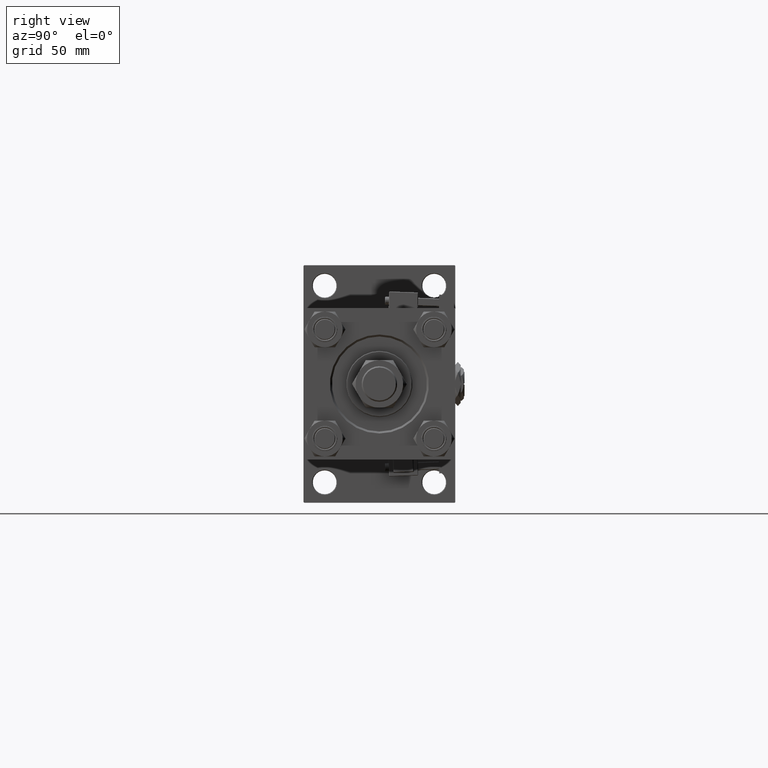
[diagram: clean part render]
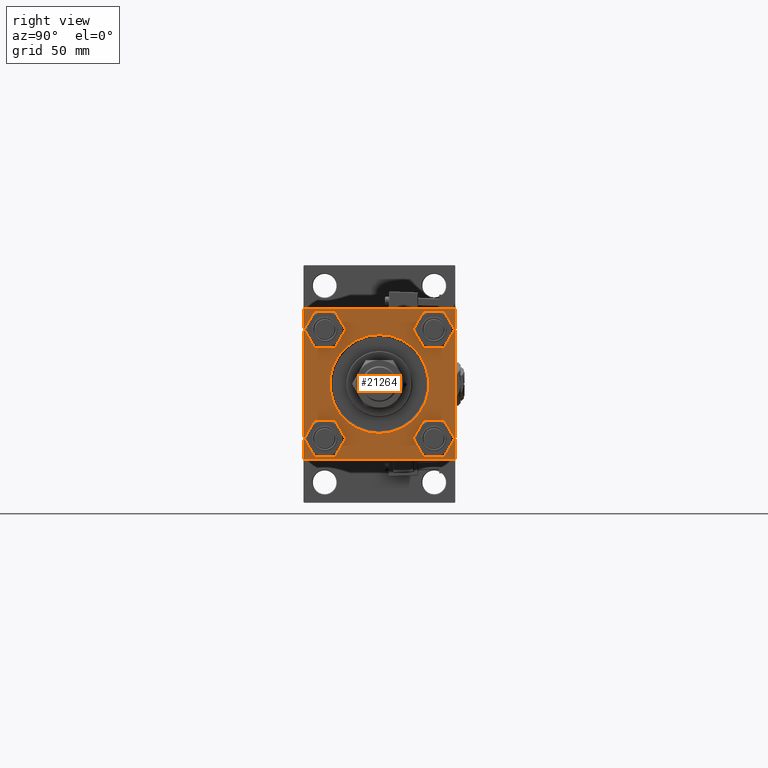
[diagram: same view with one face highlighted and labeled with its STEP entity id]
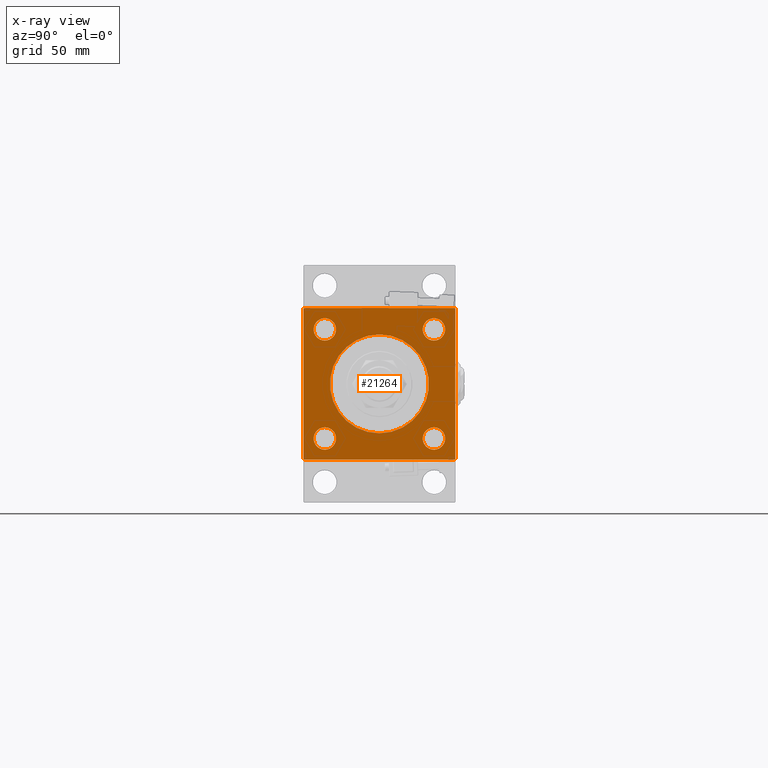
[diagram: x-ray of the same camera — body ghosted, the highlighted face saturated]
A machine part, right view. The second image highlights one B-rep face of the part: STEP entity #21264.
The next image is the same camera in x-ray: the body ghosted, the highlighted face saturated — about 0% of this face is hidden behind the body in this view.
In plain terms, the highlighted planar face has unit normal (-1, 0, 0).
Its self-contained STEP definition (entity closure, byte-faithful):
#340 = EDGE_CURVE ( 'NONE', #42423, #19040, #4211, .T. ) ;
#344 = DIRECTION ( 'NONE',  ( -1.000000000000000000, 0.000000000000000000, -0.000000000000000000 ) ) ;
#426 = ORIENTED_EDGE ( 'NONE', *, *, #10213, .T. ) ;
#1898 = ORIENTED_EDGE ( 'NONE', *, *, #47097, .T. ) ;
#2365 = CIRCLE ( 'NONE', #56030, 8.500000000000063949 ) ;
#2663 = DIRECTION ( 'NONE',  ( -1.000000000000000000, 0.000000000000000000, -0.000000000000000000 ) ) ;
#2701 = VERTEX_POINT ( 'NONE', #47496 ) ;
#2735 = DIRECTION ( 'NONE',  ( -1.000000000000000000, 0.000000000000000000, -0.000000000000000000 ) ) ;
#2802 = EDGE_CURVE ( 'NONE', #43381, #49132, #35924, .T. ) ;
#2828 = VERTEX_POINT ( 'NONE', #23559 ) ;
#2863 = CARTESIAN_POINT ( 'NONE',  ( 409.0000000000000000, -41.34999999999998721, 49.85000000000007248 ) ) ;
#2998 = VERTEX_POINT ( 'NONE', #8136 ) ;
#3162 = EDGE_CURVE ( 'NONE', #27476, #27157, #6124, .T. ) ;
#3756 = LINE ( 'NONE', #42511, #29591 ) ;
#4114 = CARTESIAN_POINT ( 'NONE',  ( 409.0000000000000000, -41.34999999999998721, 41.35000000000000853 ) ) ;
#4179 = ORIENTED_EDGE ( 'NONE', *, *, #15025, .T. ) ;
#4211 = CIRCLE ( 'NONE', #26050, 8.500000000000063949 ) ;
#4424 = ORIENTED_EDGE ( 'NONE', *, *, #28946, .T. ) ;
#4524 = AXIS2_PLACEMENT_3D ( 'NONE', #41782, #2735, #45773 ) ;
#4548 = CARTESIAN_POINT ( 'NONE',  ( 409.0000000000000000, -41.34999999999998721, 41.35000000000000853 ) ) ;
#5572 = CIRCLE ( 'NONE', #51948, 37.50000000000003553 ) ;
#5750 = CARTESIAN_POINT ( 'NONE',  ( 409.0000000000000000, 0.000000000000000000, -37.50000000000003553 ) ) ;
#6111 = CIRCLE ( 'NONE', #50644, 8.500000000000063949 ) ;
#6124 = LINE ( 'NONE', #53392, #41346 ) ;
#6629 = CARTESIAN_POINT ( 'NONE',  ( 409.0000000000000000, -41.34999999999998721, 32.84999999999995168 ) ) ;
#6828 = CARTESIAN_POINT ( 'NONE',  ( 409.0000000000000000, -57.49999999999999289, 57.00000000000004974 ) ) ;
#7161 = CARTESIAN_POINT ( 'NONE',  ( 409.0000000000000000, 57.50000000000000000, -56.99999999999996447 ) ) ;
#7308 = DIRECTION ( 'NONE',  ( 0.000000000000000000, 0.000000000000000000, -1.000000000000000000 ) ) ;
#8100 = VECTOR ( 'NONE', #31971, 1000.000000000000000 ) ;
#8136 = CARTESIAN_POINT ( 'NONE',  ( 409.0000000000000000, 57.00000000000000000, -57.49999999999996447 ) ) ;
#8144 = VECTOR ( 'NONE', #12494, 1000.000000000000000 ) ;
#8559 = LINE ( 'NONE', #17680, #24706 ) ;
#8971 = DIRECTION ( 'NONE',  ( 0.000000000000000000, 0.000000000000000000, 1.000000000000000000 ) ) ;
#9137 = CARTESIAN_POINT ( 'NONE',  ( 409.0000000000000000, 57.50000000000000000, -56.99999999999996447 ) ) ;
#9210 = ORIENTED_EDGE ( 'NONE', *, *, #2802, .T. ) ;
#10213 = EDGE_CURVE ( 'NONE', #42965, #35703, #2365, .T. ) ;
#10401 = DIRECTION ( 'NONE',  ( 0.000000000000000000, 0.7071067811865916486, -0.7071067811865033859 ) ) ;
#10652 = CARTESIAN_POINT ( 'NONE',  ( 409.0000000000000000, 0.000000000000000000, 0.000000000000000000 ) ) ;
#10755 = FACE_BOUND ( 'NONE', #20438, .T. ) ;
#10778 = ORIENTED_EDGE ( 'NONE', *, *, #15936, .T. ) ;
#11785 = CARTESIAN_POINT ( 'NONE',  ( 409.0000000000000000, 41.34999999999999432, -41.35000000000000142 ) ) ;
#12390 = DIRECTION ( 'NONE',  ( -1.000000000000000000, 0.000000000000000000, -0.000000000000000000 ) ) ;
#12494 = DIRECTION ( 'NONE',  ( 0.000000000000000000, -1.000000000000000000, -1.206764157201257291E-16 ) ) ;
#13579 = CARTESIAN_POINT ( 'NONE',  ( 409.0000000000000000, -56.99999999999998579, -57.49999999999997868 ) ) ;
#13730 = ORIENTED_EDGE ( 'NONE', *, *, #3162, .T. ) ;
#13896 = ORIENTED_EDGE ( 'NONE', *, *, #34594, .T. ) ;
#15025 = EDGE_CURVE ( 'NONE', #35703, #42965, #47126, .T. ) ;
#15649 = VECTOR ( 'NONE', #42182, 1000.000000000000114 ) ;
#15936 = EDGE_CURVE ( 'NONE', #36420, #41988, #44460, .T. ) ;
#16043 = CARTESIAN_POINT ( 'NONE',  ( 409.0000000000000000, -41.34999999999998721, -41.35000000000000853 ) ) ;
#16346 = VERTEX_POINT ( 'NONE', #5750 ) ;
#16455 = ORIENTED_EDGE ( 'NONE', *, *, #52781, .T. ) ;
#17376 = DIRECTION ( 'NONE',  ( -1.000000000000000000, 0.000000000000000000, -0.000000000000000000 ) ) ;
#17680 = CARTESIAN_POINT ( 'NONE',  ( 409.0000000000000000, -57.49999999999999289, 57.00000000000004974 ) ) ;
#18256 = DIRECTION ( 'NONE',  ( -0.000000000000000000, -0.7071067811865916486, -0.7071067811865033859 ) ) ;
#19040 = VERTEX_POINT ( 'NONE', #25765 ) ;
#19218 = EDGE_CURVE ( 'NONE', #41988, #36420, #24439, .T. ) ;
#19910 = AXIS2_PLACEMENT_3D ( 'NONE', #43940, #344, #51910 ) ;
#19952 = AXIS2_PLACEMENT_3D ( 'NONE', #16043, #41959, #46504 ) ;
#20272 = EDGE_CURVE ( 'NONE', #2701, #30892, #53327, .T. ) ;
#20438 = EDGE_LOOP ( 'NONE', ( #23597, #52265 ) ) ;
#20481 = CARTESIAN_POINT ( 'NONE',  ( 409.0000000000000000, 57.50000000000000000, -57.49999999999996447 ) ) ;
#20850 = VERTEX_POINT ( 'NONE', #6828 ) ;
#20897 = AXIS2_PLACEMENT_3D ( 'NONE', #11785, #2663, #28323 ) ;
#20937 = EDGE_CURVE ( 'NONE', #27094, #36498, #43531, .T. ) ;
#21151 = DIRECTION ( 'NONE',  ( 0.000000000000000000, -0.7071067811865474617, 0.7071067811865474617 ) ) ;
#21264 = ADVANCED_FACE ( 'NONE', ( #37247, #41506, #10755, #33505, #49758, #32673 ), #54593, .F. ) ;
#21771 = CARTESIAN_POINT ( 'NONE',  ( 409.0000000000000000, 41.34999999999999432, 41.35000000000000142 ) ) ;
#22862 = CARTESIAN_POINT ( 'NONE',  ( 409.0000000000000000, 0.000000000000000000, 0.000000000000000000 ) ) ;
#23499 = EDGE_CURVE ( 'NONE', #2998, #27157, #29284, .T. ) ;
#23559 = CARTESIAN_POINT ( 'NONE',  ( 409.0000000000000000, 4.592425496802578311E-15, 37.50000000000003553 ) ) ;
#23597 = ORIENTED_EDGE ( 'NONE', *, *, #340, .T. ) ;
#23743 = DIRECTION ( 'NONE',  ( 0.000000000000000000, 0.000000000000000000, 1.000000000000000000 ) ) ;
#23979 = LINE ( 'NONE', #7161, #15649 ) ;
#24439 = CIRCLE ( 'NONE', #19952, 8.500000000000063949 ) ;
#24706 = VECTOR ( 'NONE', #18256, 1000.000000000000114 ) ;
#25547 = EDGE_CURVE ( 'NONE', #36498, #20850, #8559, .T. ) ;
#25765 = CARTESIAN_POINT ( 'NONE',  ( 409.0000000000000000, 41.34999999999999432, 49.85000000000006537 ) ) ;
#26050 = AXIS2_PLACEMENT_3D ( 'NONE', #42581, #12390, #38596 ) ;
#26051 = DIRECTION ( 'NONE',  ( -1.000000000000000000, 0.000000000000000000, -0.000000000000000000 ) ) ;
#26480 = DIRECTION ( 'NONE',  ( 0.000000000000000000, 0.000000000000000000, 1.000000000000000000 ) ) ;
#26679 = AXIS2_PLACEMENT_3D ( 'NONE', #22862, #53882, #35697 ) ;
#26892 = ORIENTED_EDGE ( 'NONE', *, *, #20272, .F. ) ;
#27094 = VERTEX_POINT ( 'NONE', #50312 ) ;
#27157 = VERTEX_POINT ( 'NONE', #13579 ) ;
#27476 = VERTEX_POINT ( 'NONE', #51637 ) ;
#27531 = DIRECTION ( 'NONE',  ( -1.000000000000000000, 0.000000000000000000, -0.000000000000000000 ) ) ;
#27857 = CARTESIAN_POINT ( 'NONE',  ( 409.0000000000000000, -41.34999999999998721, -49.85000000000007248 ) ) ;
#28006 = DIRECTION ( 'NONE',  ( -1.000000000000000000, 0.000000000000000000, -0.000000000000000000 ) ) ;
#28323 = DIRECTION ( 'NONE',  ( 0.000000000000000000, 0.000000000000000000, 1.000000000000000000 ) ) ;
#28929 = LINE ( 'NONE', #46318, #54048 ) ;
#28946 = EDGE_CURVE ( 'NONE', #2828, #16346, #51171, .T. ) ;
#29284 = LINE ( 'NONE', #20481, #34665 ) ;
#29591 = VECTOR ( 'NONE', #21151, 1000.000000000000114 ) ;
#30892 = VERTEX_POINT ( 'NONE', #9137 ) ;
#31336 = ORIENTED_EDGE ( 'NONE', *, *, #23499, .F. ) ;
#31484 = EDGE_CURVE ( 'NONE', #20850, #27476, #28929, .T. ) ;
#31705 = AXIS2_PLACEMENT_3D ( 'NONE', #4548, #17376, #26480 ) ;
#31935 = EDGE_LOOP ( 'NONE', ( #9210, #1898 ) ) ;
#31971 = DIRECTION ( 'NONE',  ( 0.000000000000000000, 0.000000000000000000, -1.000000000000000000 ) ) ;
#32673 = FACE_OUTER_BOUND ( 'NONE', #35441, .T. ) ;
#32696 = EDGE_LOOP ( 'NONE', ( #426, #4179 ) ) ;
#33505 = FACE_BOUND ( 'NONE', #32696, .T. ) ;
#34158 = CARTESIAN_POINT ( 'NONE',  ( 409.0000000000000000, 41.34999999999999432, -49.85000000000006537 ) ) ;
#34594 = EDGE_CURVE ( 'NONE', #2701, #27094, #3756, .T. ) ;
#34665 = VECTOR ( 'NONE', #42401, 1000.000000000000000 ) ;
#34870 = DIRECTION ( 'NONE',  ( 0.000000000000000000, 0.000000000000000000, 1.000000000000000000 ) ) ;
#35441 = EDGE_LOOP ( 'NONE', ( #50668, #13730, #31336, #40040, #26892, #13896, #44793, #52350 ) ) ;
#35697 = DIRECTION ( 'NONE',  ( 0.000000000000000000, 0.000000000000000000, 1.000000000000000000 ) ) ;
#35703 = VERTEX_POINT ( 'NONE', #2863 ) ;
#35924 = CIRCLE ( 'NONE', #40418, 8.500000000000063949 ) ;
#36420 = VERTEX_POINT ( 'NONE', #27857 ) ;
#36498 = VERTEX_POINT ( 'NONE', #47465 ) ;
#37247 = FACE_BOUND ( 'NONE', #51122, .T. ) ;
#38596 = DIRECTION ( 'NONE',  ( 0.000000000000000000, 0.000000000000000000, 1.000000000000000000 ) ) ;
#40040 = ORIENTED_EDGE ( 'NONE', *, *, #55127, .T. ) ;
#40246 = CARTESIAN_POINT ( 'NONE',  ( 409.0000000000000000, 57.50000000000000000, 57.50000000000000711 ) ) ;
#40418 = AXIS2_PLACEMENT_3D ( 'NONE', #53454, #27531, #44911 ) ;
#40699 = EDGE_CURVE ( 'NONE', #19040, #42423, #6111, .T. ) ;
#41346 = VECTOR ( 'NONE', #10401, 1000.000000000000114 ) ;
#41506 = FACE_BOUND ( 'NONE', #31935, .T. ) ;
#41782 = CARTESIAN_POINT ( 'NONE',  ( 409.0000000000000000, 0.000000000000000000, 0.000000000000000000 ) ) ;
#41959 = DIRECTION ( 'NONE',  ( -1.000000000000000000, 0.000000000000000000, -0.000000000000000000 ) ) ;
#41988 = VERTEX_POINT ( 'NONE', #53330 ) ;
#42182 = DIRECTION ( 'NONE',  ( -0.000000000000000000, 0.7071067811865474617, 0.7071067811865474617 ) ) ;
#42401 = DIRECTION ( 'NONE',  ( 0.000000000000000000, -1.000000000000000000, -1.206764157201257291E-16 ) ) ;
#42423 = VERTEX_POINT ( 'NONE', #54936 ) ;
#42511 = CARTESIAN_POINT ( 'NONE',  ( 409.0000000000000000, 57.00000000000000000, 57.50000000000000711 ) ) ;
#42581 = CARTESIAN_POINT ( 'NONE',  ( 409.0000000000000000, 41.34999999999999432, 41.35000000000000142 ) ) ;
#42965 = VERTEX_POINT ( 'NONE', #6629 ) ;
#43381 = VERTEX_POINT ( 'NONE', #34158 ) ;
#43531 = LINE ( 'NONE', #51786, #8144 ) ;
#43940 = CARTESIAN_POINT ( 'NONE',  ( 409.0000000000000000, -41.34999999999998721, -41.35000000000000853 ) ) ;
#44460 = CIRCLE ( 'NONE', #19910, 8.500000000000063949 ) ;
#44793 = ORIENTED_EDGE ( 'NONE', *, *, #20937, .T. ) ;
#44911 = DIRECTION ( 'NONE',  ( 0.000000000000000000, 0.000000000000000000, 1.000000000000000000 ) ) ;
#45455 = CIRCLE ( 'NONE', #20897, 8.500000000000063949 ) ;
#45773 = DIRECTION ( 'NONE',  ( -0.000000000000000000, 0.000000000000000000, 1.000000000000000000 ) ) ;
#46318 = CARTESIAN_POINT ( 'NONE',  ( 409.0000000000000000, -57.49999999999999289, 57.49999999999999289 ) ) ;
#46504 = DIRECTION ( 'NONE',  ( 0.000000000000000000, 0.000000000000000000, 1.000000000000000000 ) ) ;
#47097 = EDGE_CURVE ( 'NONE', #49132, #43381, #45455, .T. ) ;
#47126 = CIRCLE ( 'NONE', #31705, 8.500000000000063949 ) ;
#47465 = CARTESIAN_POINT ( 'NONE',  ( 409.0000000000000000, -56.99999999999998579, 57.49999999999999289 ) ) ;
#47496 = CARTESIAN_POINT ( 'NONE',  ( 409.0000000000000000, 57.50000000000000000, 57.00000000000000711 ) ) ;
#48729 = ORIENTED_EDGE ( 'NONE', *, *, #19218, .T. ) ;
#49132 = VERTEX_POINT ( 'NONE', #55093 ) ;
#49758 = FACE_BOUND ( 'NONE', #51074, .T. ) ;
#50312 = CARTESIAN_POINT ( 'NONE',  ( 409.0000000000000000, 57.00000000000000000, 57.50000000000000711 ) ) ;
#50644 = AXIS2_PLACEMENT_3D ( 'NONE', #21771, #51946, #34870 ) ;
#50668 = ORIENTED_EDGE ( 'NONE', *, *, #31484, .T. ) ;
#51074 = EDGE_LOOP ( 'NONE', ( #16455, #4424 ) ) ;
#51122 = EDGE_LOOP ( 'NONE', ( #10778, #48729 ) ) ;
#51171 = CIRCLE ( 'NONE', #26679, 37.50000000000003553 ) ;
#51637 = CARTESIAN_POINT ( 'NONE',  ( 409.0000000000000000, -57.49999999999999289, -57.00000000000003553 ) ) ;
#51786 = CARTESIAN_POINT ( 'NONE',  ( 409.0000000000000000, 57.50000000000000000, 57.50000000000000711 ) ) ;
#51910 = DIRECTION ( 'NONE',  ( 0.000000000000000000, 0.000000000000000000, 1.000000000000000000 ) ) ;
#51946 = DIRECTION ( 'NONE',  ( -1.000000000000000000, 0.000000000000000000, -0.000000000000000000 ) ) ;
#51948 = AXIS2_PLACEMENT_3D ( 'NONE', #10652, #28006, #23743 ) ;
#52265 = ORIENTED_EDGE ( 'NONE', *, *, #40699, .T. ) ;
#52350 = ORIENTED_EDGE ( 'NONE', *, *, #25547, .T. ) ;
#52781 = EDGE_CURVE ( 'NONE', #16346, #2828, #5572, .T. ) ;
#53327 = LINE ( 'NONE', #40246, #8100 ) ;
#53330 = CARTESIAN_POINT ( 'NONE',  ( 409.0000000000000000, -41.34999999999998721, -32.84999999999995168 ) ) ;
#53392 = CARTESIAN_POINT ( 'NONE',  ( 409.0000000000000000, -56.99999999999998579, -57.49999999999997868 ) ) ;
#53454 = CARTESIAN_POINT ( 'NONE',  ( 409.0000000000000000, 41.34999999999999432, -41.35000000000000142 ) ) ;
#53882 = DIRECTION ( 'NONE',  ( -1.000000000000000000, 0.000000000000000000, -0.000000000000000000 ) ) ;
#54048 = VECTOR ( 'NONE', #7308, 1000.000000000000000 ) ;
#54593 = PLANE ( 'NONE',  #4524 ) ;
#54936 = CARTESIAN_POINT ( 'NONE',  ( 409.0000000000000000, 41.34999999999999432, 32.84999999999994458 ) ) ;
#55093 = CARTESIAN_POINT ( 'NONE',  ( 409.0000000000000000, 41.34999999999999432, -32.84999999999994458 ) ) ;
#55127 = EDGE_CURVE ( 'NONE', #2998, #30892, #23979, .T. ) ;
#56030 = AXIS2_PLACEMENT_3D ( 'NONE', #4114, #26051, #8971 ) ;